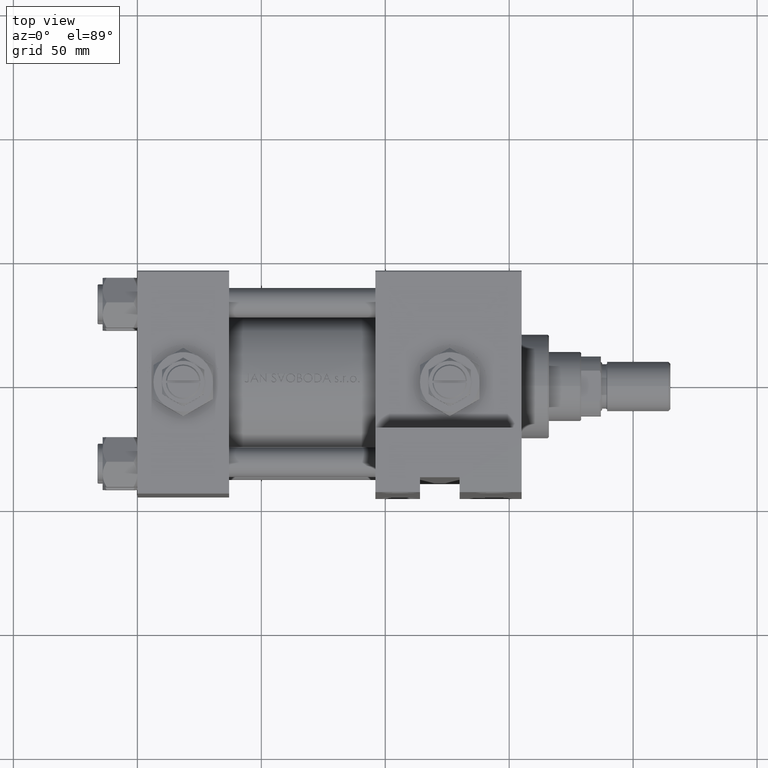
[diagram: clean part render]
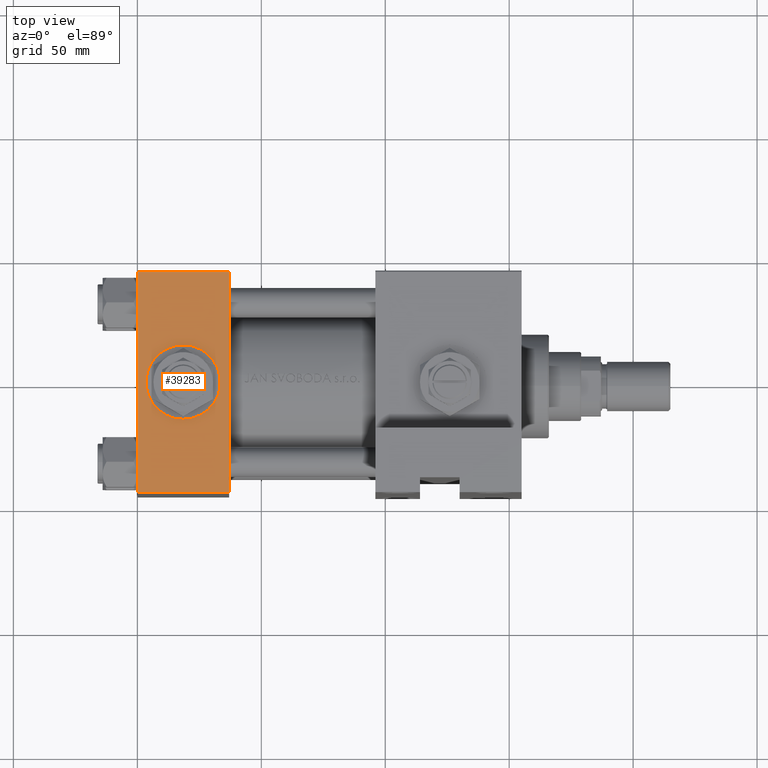
[diagram: same view with one face highlighted and labeled with its STEP entity id]
A machine part, top view. The second image highlights one B-rep face of the part: STEP entity #39283.
In plain terms, the highlighted planar face has unit normal (0, 0, -1).
Its self-contained STEP definition (entity closure, byte-faithful):
#1551 = CARTESIAN_POINT ( 'NONE',  ( 37.00000000000000000, -45.00000000000000711, 45.00000000000000000 ) ) ;
#3942 = CARTESIAN_POINT ( 'NONE',  ( 0.000000000000000000, -45.00000000000000711, 45.00000000000000000 ) ) ;
#4407 = LINE ( 'NONE', #39393, #47020 ) ;
#4458 = EDGE_LOOP ( 'NONE', ( #25371, #19316, #30504, #43837 ) ) ;
#4658 = DIRECTION ( 'NONE',  ( -1.000000000000000000, 0.000000000000000000, 0.000000000000000000 ) ) ;
#5404 = CARTESIAN_POINT ( 'NONE',  ( 0.000000000000000000, -45.00000000000000000, -44.49999999999995737 ) ) ;
#7036 = CARTESIAN_POINT ( 'NONE',  ( 18.50000000000000000, -45.00000000000000000, -3.469446951953614978E-15 ) ) ;
#8235 = DIRECTION ( 'NONE',  ( 0.000000000000000000, 7.709882115452476934E-17, -1.000000000000000000 ) ) ;
#9131 = DIRECTION ( 'NONE',  ( 0.000000000000000000, 7.709882115452476934E-17, -1.000000000000000000 ) ) ;
#10447 = AXIS2_PLACEMENT_3D ( 'NONE', #22551, #14679, #15170 ) ;
#10664 = VECTOR ( 'NONE', #9131, 1000.000000000000000 ) ;
#11026 = VECTOR ( 'NONE', #8235, 1000.000000000000000 ) ;
#11043 = EDGE_CURVE ( 'NONE', #12328, #48040, #34612, .T. ) ;
#11984 = CIRCLE ( 'NONE', #22538, 15.00000000000000178 ) ;
#12328 = VERTEX_POINT ( 'NONE', #25897 ) ;
#12989 = ORIENTED_EDGE ( 'NONE', *, *, #15109, .F. ) ;
#13008 = DIRECTION ( 'NONE',  ( 1.000000000000000000, 0.000000000000000000, 0.000000000000000000 ) ) ;
#13498 = LINE ( 'NONE', #17317, #18285 ) ;
#14507 = DIRECTION ( 'NONE',  ( 0.000000000000000000, 0.000000000000000000, -1.000000000000000000 ) ) ;
#14679 = DIRECTION ( 'NONE',  ( -0.000000000000000000, 1.000000000000000000, 7.709882115452478166E-17 ) ) ;
#15109 = EDGE_CURVE ( 'NONE', #16634, #46102, #11984, .T. ) ;
#15170 = DIRECTION ( 'NONE',  ( 0.000000000000000000, -7.709882115452478166E-17, 1.000000000000000000 ) ) ;
#15981 = VERTEX_POINT ( 'NONE', #16141 ) ;
#16141 = CARTESIAN_POINT ( 'NONE',  ( 37.00000000000000000, -45.00000000000000000, -44.49999999999995737 ) ) ;
#16634 = VERTEX_POINT ( 'NONE', #46833 ) ;
#17251 = LINE ( 'NONE', #1551, #10664 ) ;
#17317 = CARTESIAN_POINT ( 'NONE',  ( 37.00000000000000000, -45.00000000000000000, -44.49999999999998579 ) ) ;
#18285 = VECTOR ( 'NONE', #13008, 1000.000000000000000 ) ;
#19316 = ORIENTED_EDGE ( 'NONE', *, *, #30638, .T. ) ;
#22538 = AXIS2_PLACEMENT_3D ( 'NONE', #7036, #34911, #22754 ) ;
#22551 = CARTESIAN_POINT ( 'NONE',  ( 37.00000000000000000, -45.00000000000000711, 45.00000000000000000 ) ) ;
#22754 = DIRECTION ( 'NONE',  ( 0.000000000000000000, 0.000000000000000000, -1.000000000000000000 ) ) ;
#25371 = ORIENTED_EDGE ( 'NONE', *, *, #11043, .T. ) ;
#25897 = CARTESIAN_POINT ( 'NONE',  ( 0.000000000000000000, -45.00000000000000711, 44.49999999999997158 ) ) ;
#26169 = DIRECTION ( 'NONE',  ( 0.000000000000000000, -1.000000000000000000, -8.673617379884036705E-17 ) ) ;
#27956 = AXIS2_PLACEMENT_3D ( 'NONE', #41649, #26169, #14507 ) ;
#28993 = EDGE_LOOP ( 'NONE', ( #41372, #12989 ) ) ;
#30504 = ORIENTED_EDGE ( 'NONE', *, *, #48455, .F. ) ;
#30638 = EDGE_CURVE ( 'NONE', #48040, #15981, #13498, .T. ) ;
#30712 = EDGE_CURVE ( 'NONE', #46102, #16634, #35246, .T. ) ;
#33964 = FACE_BOUND ( 'NONE', #28993, .T. ) ;
#34612 = LINE ( 'NONE', #3942, #11026 ) ;
#34911 = DIRECTION ( 'NONE',  ( 0.000000000000000000, -1.000000000000000000, -8.673617379884036705E-17 ) ) ;
#35246 = CIRCLE ( 'NONE', #27956, 15.00000000000000178 ) ;
#39283 = ADVANCED_FACE ( 'NONE', ( #33964, #49962 ), #49465, .F. ) ;
#39393 = CARTESIAN_POINT ( 'NONE',  ( 37.00000000000000000, -45.00000000000000711, 44.49999999999997158 ) ) ;
#41098 = VERTEX_POINT ( 'NONE', #43461 ) ;
#41372 = ORIENTED_EDGE ( 'NONE', *, *, #30712, .F. ) ;
#41649 = CARTESIAN_POINT ( 'NONE',  ( 18.50000000000000000, -45.00000000000000000, -3.469446951953614978E-15 ) ) ;
#43461 = CARTESIAN_POINT ( 'NONE',  ( 37.00000000000000000, -45.00000000000000711, 44.49999999999997158 ) ) ;
#43837 = ORIENTED_EDGE ( 'NONE', *, *, #44760, .T. ) ;
#44760 = EDGE_CURVE ( 'NONE', #41098, #12328, #4407, .T. ) ;
#45431 = CARTESIAN_POINT ( 'NONE',  ( 18.50000000000000000, -45.00000000000000000, -15.00000000000000533 ) ) ;
#46102 = VERTEX_POINT ( 'NONE', #45431 ) ;
#46833 = CARTESIAN_POINT ( 'NONE',  ( 18.50000000000000355, -45.00000000000000000, 14.99999999999999822 ) ) ;
#47020 = VECTOR ( 'NONE', #4658, 1000.000000000000000 ) ;
#48040 = VERTEX_POINT ( 'NONE', #5404 ) ;
#48455 = EDGE_CURVE ( 'NONE', #41098, #15981, #17251, .T. ) ;
#49465 = PLANE ( 'NONE',  #10447 ) ;
#49962 = FACE_OUTER_BOUND ( 'NONE', #4458, .T. ) ;